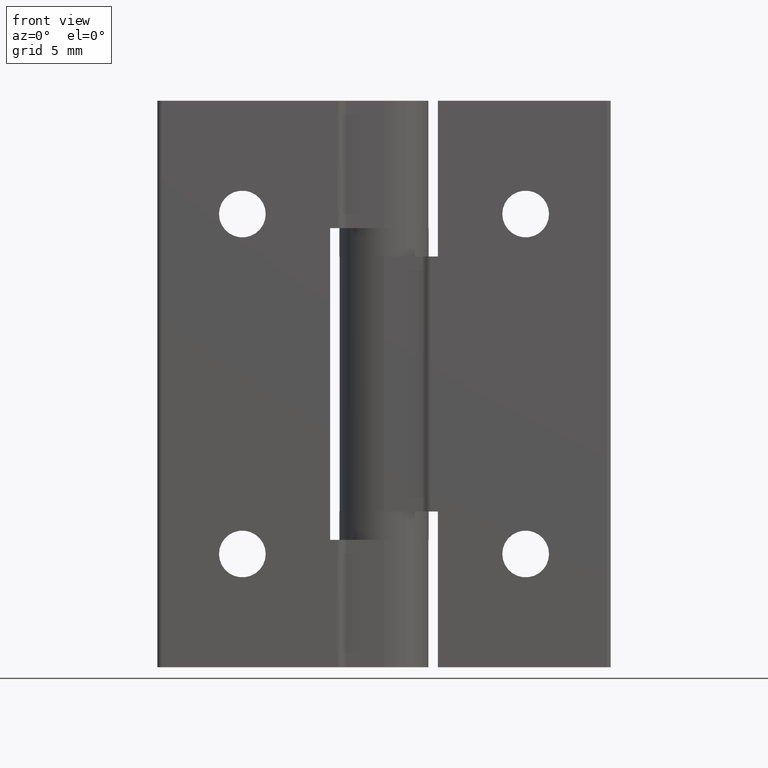
[diagram: clean part render]
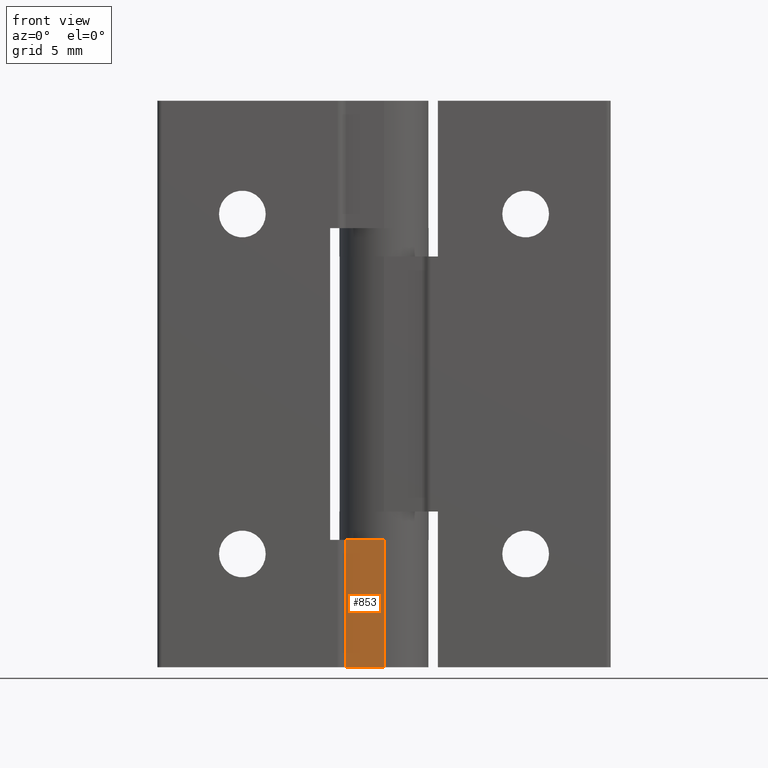
[diagram: same view with one face highlighted and labeled with its STEP entity id]
A machine part, front view. The second image highlights one B-rep face of the part: STEP entity #853.
In plain terms, the highlighted planar face has unit normal (-0, 1, 0).
Its self-contained STEP definition (entity closure, byte-faithful):
#160=FACE_OUTER_BOUND('',#215,.T.);
#215=EDGE_LOOP('',(#639,#640,#641,#642));
#292=LINE('',#1316,#353);
#301=LINE('',#1350,#362);
#303=LINE('',#1358,#364);
#304=LINE('',#1359,#365);
#353=VECTOR('',#1029,2.68220700148449);
#362=VECTOR('',#1060,9.);
#364=VECTOR('',#1070,9.);
#365=VECTOR('',#1071,2.68220700148449);
#415=VERTEX_POINT('',#1313);
#416=VERTEX_POINT('',#1315);
#430=VERTEX_POINT('',#1349);
#432=VERTEX_POINT('',#1357);
#498=EDGE_CURVE('',#416,#415,#292,.T.);
#515=EDGE_CURVE('',#416,#430,#301,.T.);
#519=EDGE_CURVE('',#432,#415,#303,.T.);
#520=EDGE_CURVE('',#430,#432,#304,.T.);
#639=ORIENTED_EDGE('',*,*,#498,.T.);
#640=ORIENTED_EDGE('',*,*,#519,.F.);
#641=ORIENTED_EDGE('',*,*,#520,.F.);
#642=ORIENTED_EDGE('',*,*,#515,.F.);
#827=PLANE('',#921);
#853=ADVANCED_FACE('',(#160),#827,.F.);
#921=AXIS2_PLACEMENT_3D('',#1356,#1068,#1069);
#1029=DIRECTION('',(-1.,-3.37691169050225E-17,0.));
#1060=DIRECTION('',(0.,0.,-1.));
#1068=DIRECTION('center_axis',(-3.37691169050225E-17,1.,0.));
#1069=DIRECTION('ref_axis',(1.,3.33066907387547E-17,0.));
#1070=DIRECTION('',(0.,0.,1.));
#1071=DIRECTION('',(-1.,-3.37691169050225E-17,0.));
#1313=CARTESIAN_POINT('',(-2.68220700148449,0.200000000000001,-31.));
#1315=CARTESIAN_POINT('',(1.53080849893419E-16,0.200000000000001,-31.));
#1316=CARTESIAN_POINT('',(1.6618307914127,0.200000000000001,-31.));
#1349=CARTESIAN_POINT('',(1.53080849893419E-16,0.200000000000001,-40.));
#1350=CARTESIAN_POINT('',(1.53080849893419E-16,0.200000000000001,0.));
#1356=CARTESIAN_POINT('Origin',(-3.08220700148449,0.200000000000001,0.));
#1357=CARTESIAN_POINT('',(-2.68220700148449,0.200000000000001,-40.));
#1358=CARTESIAN_POINT('',(-2.68220700148449,0.200000000000001,0.));
#1359=CARTESIAN_POINT('',(-5.54110350074224,0.200000000000001,-40.));